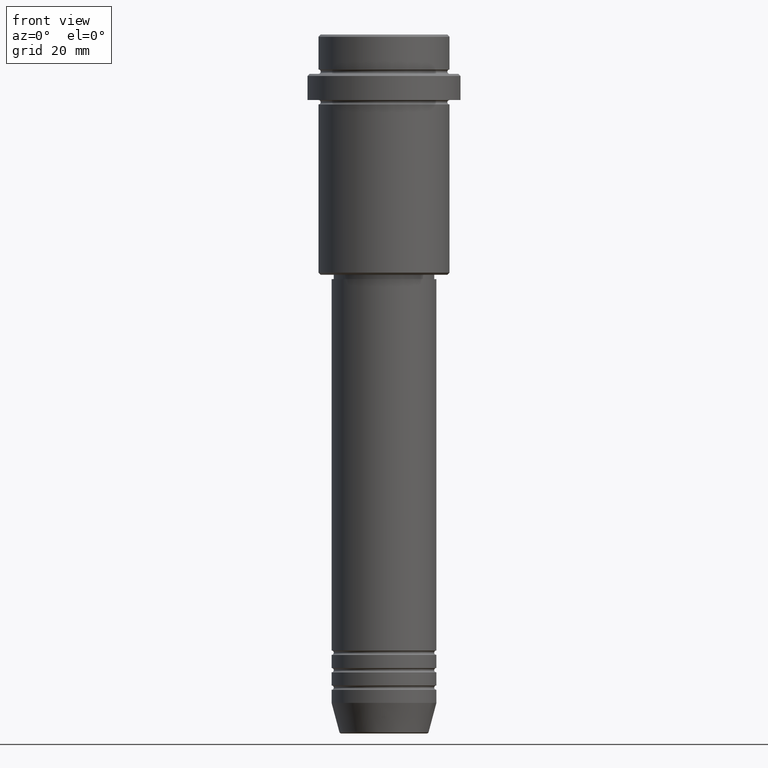
[diagram: clean part render]
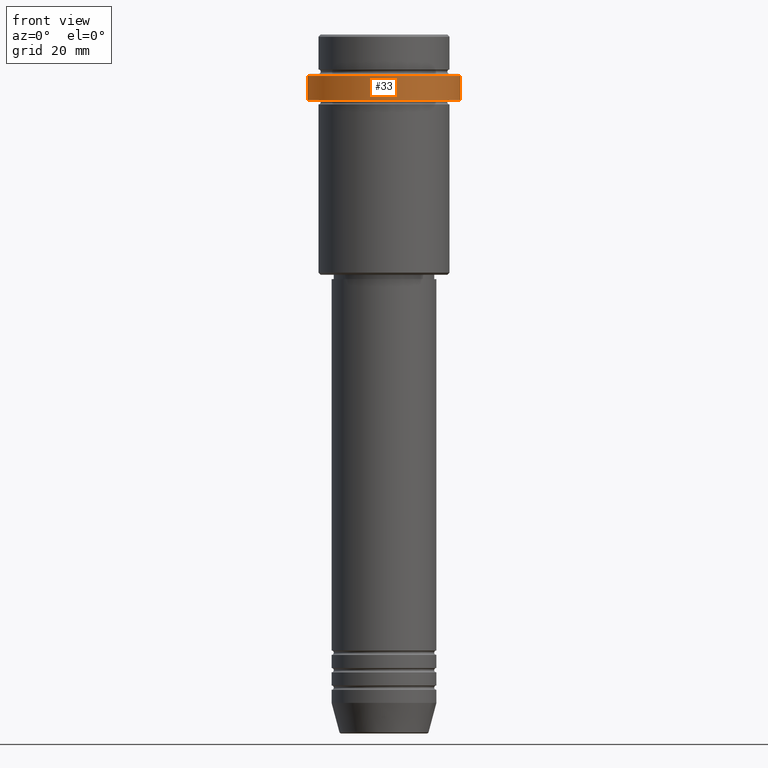
[diagram: same view with one face highlighted and labeled with its STEP entity id]
A machine part, front view. The second image highlights one B-rep face of the part: STEP entity #33.
In plain terms, the highlighted cylindrical surface (partial cylindrical patch) has radius 17.5 mm, axis along (-0, -0, 1).
Its self-contained STEP definition (entity closure, byte-faithful):
#27 = DIRECTION ( 'NONE',  ( -0.000000000000000000, -0.000000000000000000, 1.000000000000000000 ) ) ;
#30 = CARTESIAN_POINT ( 'NONE',  ( -17.50000000000000000, 2.143131898507868248E-15, 0.000000000000000000 ) ) ;
#33 = ADVANCED_FACE ( 'NONE', ( #1040 ), #381, .T. ) ;
#117 = AXIS2_PLACEMENT_3D ( 'NONE', #1015, #27, #698 ) ;
#167 = ORIENTED_EDGE ( 'NONE', *, *, #228, .T. ) ;
#219 = EDGE_CURVE ( 'NONE', #505, #393, #436, .T. ) ;
#228 = EDGE_CURVE ( 'NONE', #393, #1356, #688, .T. ) ;
#238 = CARTESIAN_POINT ( 'NONE',  ( 17.50000000000000000, 0.000000000000000000, -9.500000000000014211 ) ) ;
#286 = CARTESIAN_POINT ( 'NONE',  ( -17.50000000000000000, 2.143131898507868248E-15, -9.500000000000014211 ) ) ;
#352 = EDGE_CURVE ( 'NONE', #1356, #359, #938, .T. ) ;
#359 = VERTEX_POINT ( 'NONE', #286 ) ;
#381 = CYLINDRICAL_SURFACE ( 'NONE', #117, 17.50000000000000000 ) ;
#393 = VERTEX_POINT ( 'NONE', #1327 ) ;
#436 = CIRCLE ( 'NONE', #825, 17.50000000000000000 ) ;
#499 = EDGE_CURVE ( 'NONE', #505, #359, #577, .T. ) ;
#505 = VERTEX_POINT ( 'NONE', #796 ) ;
#577 = LINE ( 'NONE', #30, #1304 ) ;
#620 = CARTESIAN_POINT ( 'NONE',  ( 0.000000000000000000, 0.000000000000000000, -9.500000000000014211 ) ) ;
#662 = AXIS2_PLACEMENT_3D ( 'NONE', #620, #749, #1191 ) ;
#688 = LINE ( 'NONE', #1027, #775 ) ;
#693 = ORIENTED_EDGE ( 'NONE', *, *, #499, .F. ) ;
#698 = DIRECTION ( 'NONE',  ( 1.000000000000000000, 0.000000000000000000, 0.000000000000000000 ) ) ;
#718 = ORIENTED_EDGE ( 'NONE', *, *, #352, .T. ) ;
#749 = DIRECTION ( 'NONE',  ( 0.000000000000000000, 0.000000000000000000, -1.000000000000000000 ) ) ;
#775 = VECTOR ( 'NONE', #1342, 1000.000000000000000 ) ;
#796 = CARTESIAN_POINT ( 'NONE',  ( -17.50000000000000000, 2.143131898507868248E-15, -15.00000000000000000 ) ) ;
#800 = CARTESIAN_POINT ( 'NONE',  ( 0.000000000000000000, 0.000000000000000000, -15.00000000000000000 ) ) ;
#811 = DIRECTION ( 'NONE',  ( -0.000000000000000000, -0.000000000000000000, 1.000000000000000000 ) ) ;
#825 = AXIS2_PLACEMENT_3D ( 'NONE', #800, #811, #1228 ) ;
#840 = EDGE_LOOP ( 'NONE', ( #693, #932, #167, #718 ) ) ;
#932 = ORIENTED_EDGE ( 'NONE', *, *, #219, .T. ) ;
#938 = CIRCLE ( 'NONE', #662, 17.50000000000000000 ) ;
#1015 = CARTESIAN_POINT ( 'NONE',  ( 0.000000000000000000, 0.000000000000000000, 0.000000000000000000 ) ) ;
#1027 = CARTESIAN_POINT ( 'NONE',  ( 17.50000000000000000, 0.000000000000000000, 0.000000000000000000 ) ) ;
#1040 = FACE_OUTER_BOUND ( 'NONE', #840, .T. ) ;
#1191 = DIRECTION ( 'NONE',  ( 1.000000000000000000, 0.000000000000000000, 0.000000000000000000 ) ) ;
#1226 = DIRECTION ( 'NONE',  ( -0.000000000000000000, -0.000000000000000000, 1.000000000000000000 ) ) ;
#1228 = DIRECTION ( 'NONE',  ( 1.000000000000000000, 0.000000000000000000, 0.000000000000000000 ) ) ;
#1304 = VECTOR ( 'NONE', #1226, 1000.000000000000000 ) ;
#1327 = CARTESIAN_POINT ( 'NONE',  ( 17.50000000000000000, 0.000000000000000000, -15.00000000000000000 ) ) ;
#1342 = DIRECTION ( 'NONE',  ( -0.000000000000000000, -0.000000000000000000, 1.000000000000000000 ) ) ;
#1356 = VERTEX_POINT ( 'NONE', #238 ) ;